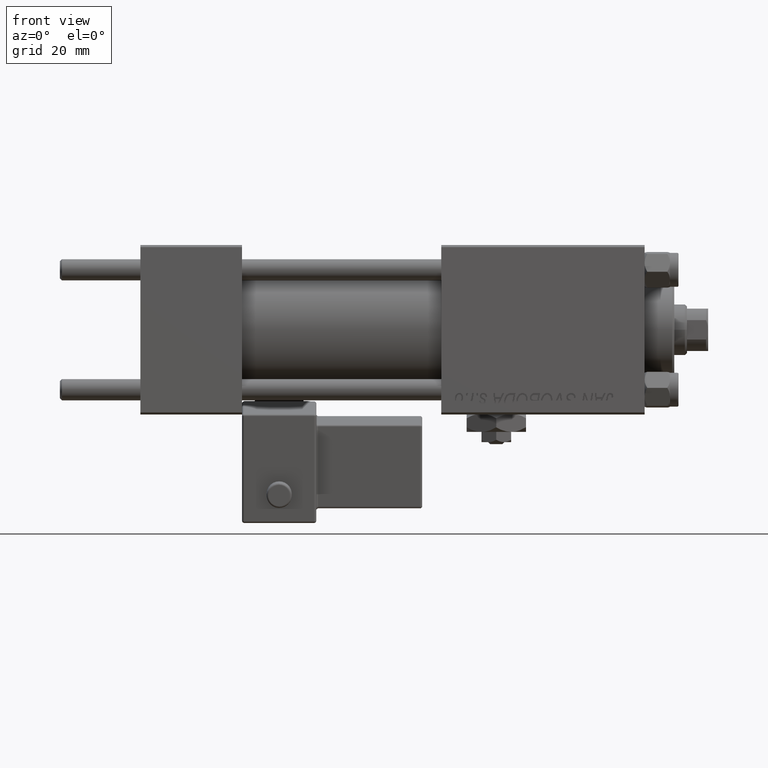
[diagram: clean part render]
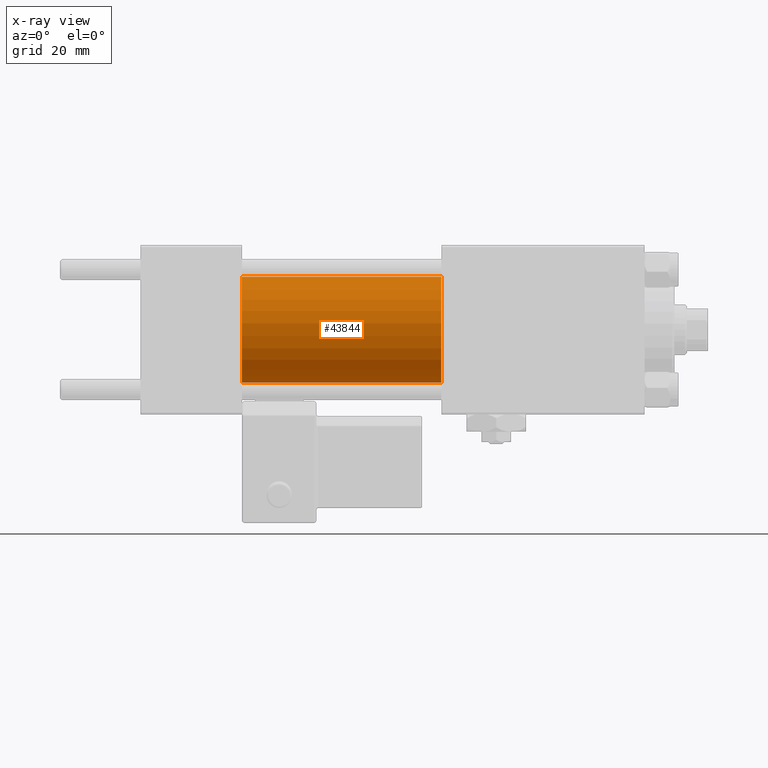
[diagram: x-ray — body ghosted, one internal face saturated and labeled with its STEP entity id]
A machine part, front view, then the same camera in x-ray: the body is ghosted and one INTERNAL B-rep face — a face not visible from any outside direction — is saturated and labeled: STEP entity #43844.
In plain terms, the highlighted cylindrical surface (partial cylindrical patch) has radius 12.5 mm, axis along (-1, -0, -0).
Its self-contained STEP definition (entity closure, byte-faithful):
#885 = AXIS2_PLACEMENT_3D ( 'NONE', #9997, #42677, #26611 ) ;
#2440 = EDGE_LOOP ( 'NONE', ( #28745, #41914, #47020, #35405 ) ) ;
#3487 = CIRCLE ( 'NONE', #885, 12.49999999999999645 ) ;
#6334 = DIRECTION ( 'NONE',  ( 0.000000000000000000, 0.000000000000000000, 1.000000000000000000 ) ) ;
#7113 = DIRECTION ( 'NONE',  ( -1.000000000000000000, -0.000000000000000000, -0.000000000000000000 ) ) ;
#7725 = VERTEX_POINT ( 'NONE', #39082 ) ;
#8311 = EDGE_CURVE ( 'NONE', #7725, #17919, #21440, .T. ) ;
#9480 = AXIS2_PLACEMENT_3D ( 'NONE', #39045, #43643, #6334 ) ;
#9997 = CARTESIAN_POINT ( 'NONE',  ( 24.00000000000000000, 0.000000000000000000, 0.000000000000000000 ) ) ;
#10581 = EDGE_CURVE ( 'NONE', #17919, #27406, #3487, .T. ) ;
#17919 = VERTEX_POINT ( 'NONE', #28155 ) ;
#18596 = FACE_OUTER_BOUND ( 'NONE', #2440, .T. ) ;
#20769 = CARTESIAN_POINT ( 'NONE',  ( 71.00000000000001421, 1.530808498934191127E-15, -12.49999999999999645 ) ) ;
#21440 = LINE ( 'NONE', #38076, #27972 ) ;
#22269 = AXIS2_PLACEMENT_3D ( 'NONE', #36343, #32275, #44226 ) ;
#23111 = VECTOR ( 'NONE', #50445, 1000.000000000000000 ) ;
#26048 = CARTESIAN_POINT ( 'NONE',  ( 71.00000000000001421, 1.530808498934191127E-15, -12.49999999999999645 ) ) ;
#26425 = VERTEX_POINT ( 'NONE', #26048 ) ;
#26611 = DIRECTION ( 'NONE',  ( 0.000000000000000000, 0.000000000000000000, -1.000000000000000000 ) ) ;
#26774 = CYLINDRICAL_SURFACE ( 'NONE', #9480, 12.49999999999999645 ) ;
#27406 = VERTEX_POINT ( 'NONE', #45944 ) ;
#27972 = VECTOR ( 'NONE', #7113, 1000.000000000000000 ) ;
#28155 = CARTESIAN_POINT ( 'NONE',  ( 24.00000000000000000, 0.000000000000000000, 12.49999999999999645 ) ) ;
#28745 = ORIENTED_EDGE ( 'NONE', *, *, #37862, .T. ) ;
#28954 = LINE ( 'NONE', #20769, #23111 ) ;
#32275 = DIRECTION ( 'NONE',  ( 1.000000000000000000, 0.000000000000000000, 0.000000000000000000 ) ) ;
#35405 = ORIENTED_EDGE ( 'NONE', *, *, #8311, .F. ) ;
#36343 = CARTESIAN_POINT ( 'NONE',  ( 71.00000000000001421, 0.000000000000000000, 0.000000000000000000 ) ) ;
#37862 = EDGE_CURVE ( 'NONE', #7725, #26425, #49192, .T. ) ;
#37932 = EDGE_CURVE ( 'NONE', #26425, #27406, #28954, .T. ) ;
#38076 = CARTESIAN_POINT ( 'NONE',  ( 71.00000000000001421, 0.000000000000000000, 12.49999999999999645 ) ) ;
#39045 = CARTESIAN_POINT ( 'NONE',  ( 71.00000000000001421, 0.000000000000000000, 0.000000000000000000 ) ) ;
#39082 = CARTESIAN_POINT ( 'NONE',  ( 71.00000000000001421, 0.000000000000000000, 12.49999999999999645 ) ) ;
#41914 = ORIENTED_EDGE ( 'NONE', *, *, #37932, .T. ) ;
#42677 = DIRECTION ( 'NONE',  ( 1.000000000000000000, 0.000000000000000000, 0.000000000000000000 ) ) ;
#43643 = DIRECTION ( 'NONE',  ( -1.000000000000000000, -0.000000000000000000, -0.000000000000000000 ) ) ;
#43844 = ADVANCED_FACE ( 'NONE', ( #18596 ), #26774, .F. ) ;
#44226 = DIRECTION ( 'NONE',  ( 0.000000000000000000, 0.000000000000000000, -1.000000000000000000 ) ) ;
#45944 = CARTESIAN_POINT ( 'NONE',  ( 24.00000000000000000, 1.530808498934191127E-15, -12.49999999999999645 ) ) ;
#47020 = ORIENTED_EDGE ( 'NONE', *, *, #10581, .F. ) ;
#49192 = CIRCLE ( 'NONE', #22269, 12.49999999999999645 ) ;
#50445 = DIRECTION ( 'NONE',  ( -1.000000000000000000, -0.000000000000000000, -0.000000000000000000 ) ) ;